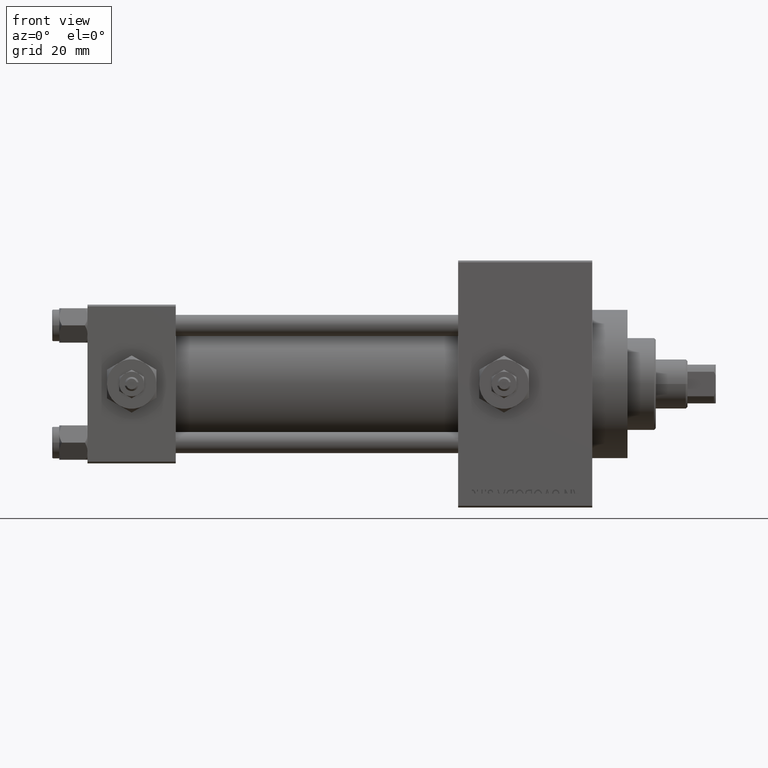
[diagram: clean part render]
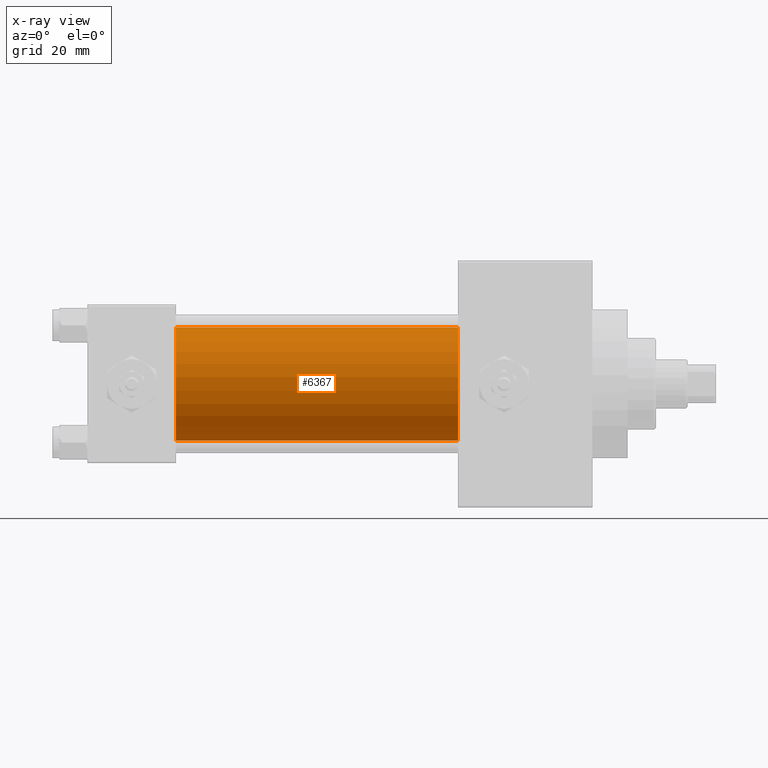
[diagram: x-ray — body ghosted, one internal face saturated and labeled with its STEP entity id]
A machine part, front view, then the same camera in x-ray: the body is ghosted and one INTERNAL B-rep face — a face not visible from any outside direction — is saturated and labeled: STEP entity #6367.
In plain terms, the highlighted cylindrical surface (partial cylindrical patch) has radius 16 mm, axis along (-1, -0, -0).
Its self-contained STEP definition (entity closure, byte-faithful):
#880 = FACE_OUTER_BOUND ( 'NONE', #12917, .T. ) ;
#2686 = VERTEX_POINT ( 'NONE', #5952 ) ;
#4152 = CARTESIAN_POINT ( 'NONE',  ( 25.00000000000000000, -2.602085213965210642E-15, 16.00000000000000000 ) ) ;
#4442 = VECTOR ( 'NONE', #43959, 1000.000000000000000 ) ;
#5470 = CARTESIAN_POINT ( 'NONE',  ( 105.0000000000000142, -2.602085213965210642E-15, 0.000000000000000000 ) ) ;
#5952 = CARTESIAN_POINT ( 'NONE',  ( 105.0000000000000142, -2.602085213965210642E-15, 16.00000000000000000 ) ) ;
#6367 = ADVANCED_FACE ( 'NONE', ( #880 ), #23577, .F. ) ;
#6944 = LINE ( 'NONE', #44822, #39319 ) ;
#8033 = CIRCLE ( 'NONE', #20770, 16.00000000000000000 ) ;
#10105 = DIRECTION ( 'NONE',  ( 1.000000000000000000, 0.000000000000000000, 0.000000000000000000 ) ) ;
#10811 = EDGE_CURVE ( 'NONE', #2686, #18508, #27123, .T. ) ;
#11855 = DIRECTION ( 'NONE',  ( 0.000000000000000000, 0.000000000000000000, 1.000000000000000000 ) ) ;
#12917 = EDGE_LOOP ( 'NONE', ( #16233, #21021, #15500, #41383 ) ) ;
#13184 = DIRECTION ( 'NONE',  ( 1.000000000000000000, 0.000000000000000000, 0.000000000000000000 ) ) ;
#13822 = DIRECTION ( 'NONE',  ( 0.000000000000000000, 0.000000000000000000, -1.000000000000000000 ) ) ;
#15115 = AXIS2_PLACEMENT_3D ( 'NONE', #23336, #45990, #11855 ) ;
#15500 = ORIENTED_EDGE ( 'NONE', *, *, #48034, .F. ) ;
#16233 = ORIENTED_EDGE ( 'NONE', *, *, #10811, .T. ) ;
#18491 = EDGE_CURVE ( 'NONE', #2686, #27792, #6944, .T. ) ;
#18508 = VERTEX_POINT ( 'NONE', #48797 ) ;
#20770 = AXIS2_PLACEMENT_3D ( 'NONE', #45182, #10105, #13822 ) ;
#21021 = ORIENTED_EDGE ( 'NONE', *, *, #26563, .T. ) ;
#22158 = DIRECTION ( 'NONE',  ( -1.000000000000000000, -0.000000000000000000, -0.000000000000000000 ) ) ;
#23336 = CARTESIAN_POINT ( 'NONE',  ( 105.0000000000000142, -2.602085213965210642E-15, 0.000000000000000000 ) ) ;
#23577 = CYLINDRICAL_SURFACE ( 'NONE', #15115, 16.00000000000000000 ) ;
#24092 = CARTESIAN_POINT ( 'NONE',  ( 25.00000000000000000, -6.426503353294456087E-16, -16.00000000000000000 ) ) ;
#26563 = EDGE_CURVE ( 'NONE', #18508, #27937, #36491, .T. ) ;
#27123 = CIRCLE ( 'NONE', #43007, 16.00000000000000000 ) ;
#27792 = VERTEX_POINT ( 'NONE', #4152 ) ;
#27937 = VERTEX_POINT ( 'NONE', #24092 ) ;
#28519 = CARTESIAN_POINT ( 'NONE',  ( 105.0000000000000142, -6.426503353294456087E-16, -16.00000000000000000 ) ) ;
#36491 = LINE ( 'NONE', #28519, #4442 ) ;
#39319 = VECTOR ( 'NONE', #22158, 1000.000000000000000 ) ;
#39373 = DIRECTION ( 'NONE',  ( 0.000000000000000000, 0.000000000000000000, -1.000000000000000000 ) ) ;
#41383 = ORIENTED_EDGE ( 'NONE', *, *, #18491, .F. ) ;
#43007 = AXIS2_PLACEMENT_3D ( 'NONE', #5470, #13184, #39373 ) ;
#43959 = DIRECTION ( 'NONE',  ( -1.000000000000000000, -0.000000000000000000, -0.000000000000000000 ) ) ;
#44822 = CARTESIAN_POINT ( 'NONE',  ( 105.0000000000000142, -2.602085213965210642E-15, 16.00000000000000000 ) ) ;
#45182 = CARTESIAN_POINT ( 'NONE',  ( 25.00000000000000000, -2.602085213965210642E-15, 0.000000000000000000 ) ) ;
#45990 = DIRECTION ( 'NONE',  ( -1.000000000000000000, -0.000000000000000000, -0.000000000000000000 ) ) ;
#48034 = EDGE_CURVE ( 'NONE', #27792, #27937, #8033, .T. ) ;
#48797 = CARTESIAN_POINT ( 'NONE',  ( 105.0000000000000142, -6.426503353294456087E-16, -16.00000000000000000 ) ) ;